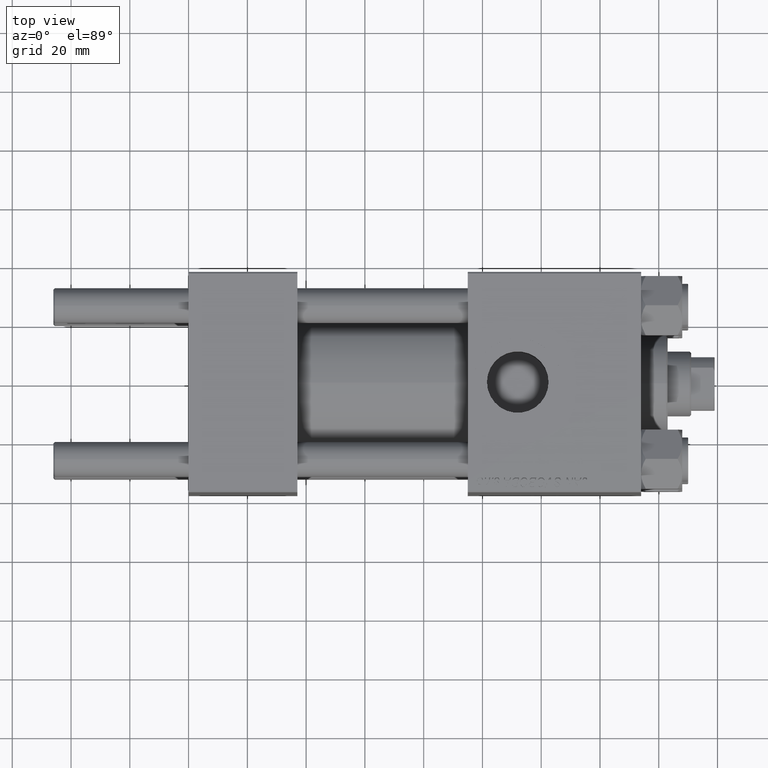
[diagram: clean part render]
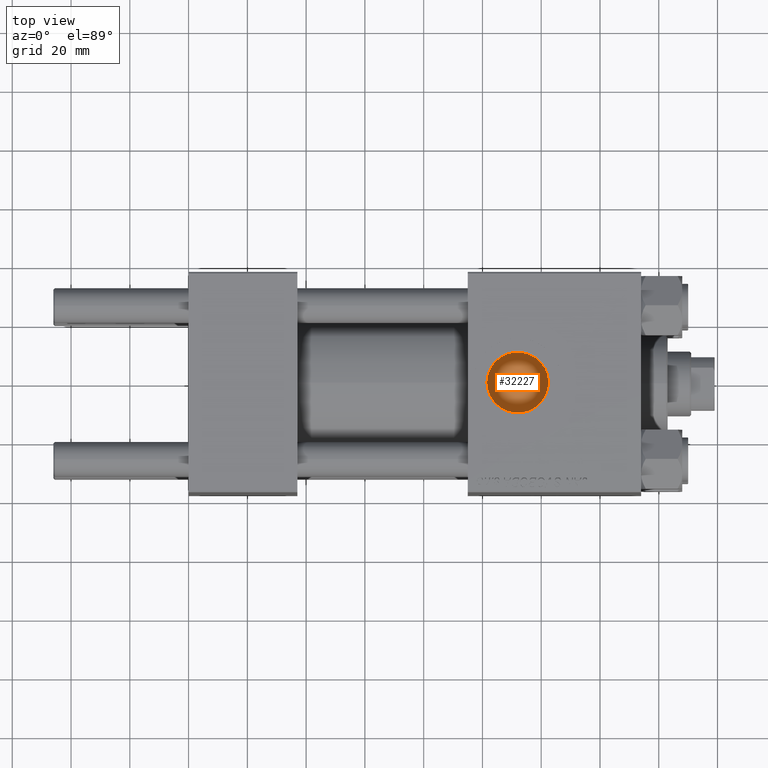
[diagram: same view with one face highlighted and labeled with its STEP entity id]
A machine part, top view. The second image highlights one B-rep face of the part: STEP entity #32227.
In plain terms, the highlighted planar face has unit normal (0, 0, 1).
Its self-contained STEP definition (entity closure, byte-faithful):
#1151 = DIRECTION ( 'NONE',  ( 1.000000000000000000, 0.000000000000000000, 0.000000000000000000 ) ) ;
#1303 = CIRCLE ( 'NONE', #39878, 10.48000000000000398 ) ;
#9064 = DIRECTION ( 'NONE',  ( 1.000000000000000000, 0.000000000000000000, -0.000000000000000000 ) ) ;
#12086 = CARTESIAN_POINT ( 'NONE',  ( 112.0000000000000000, -6.938893903907226011E-15, 21.09999999999998010 ) ) ;
#12502 = CARTESIAN_POINT ( 'NONE',  ( 112.0000000000000000, -6.938893903907226011E-15, 21.09999999999998010 ) ) ;
#14531 = ORIENTED_EDGE ( 'NONE', *, *, #41936, .T. ) ;
#16159 = DIRECTION ( 'NONE',  ( 1.000000000000000000, 0.000000000000000000, 0.000000000000000000 ) ) ;
#17888 = AXIS2_PLACEMENT_3D ( 'NONE', #12086, #42746, #9064 ) ;
#18286 = VERTEX_POINT ( 'NONE', #26664 ) ;
#19478 = ORIENTED_EDGE ( 'NONE', *, *, #40466, .T. ) ;
#19929 = CARTESIAN_POINT ( 'NONE',  ( 112.0000000000000000, -6.938893903907226011E-15, 21.09999999999998010 ) ) ;
#20292 = DIRECTION ( 'NONE',  ( 0.000000000000000000, 0.000000000000000000, 1.000000000000000000 ) ) ;
#20619 = FACE_OUTER_BOUND ( 'NONE', #44451, .T. ) ;
#21478 = AXIS2_PLACEMENT_3D ( 'NONE', #19929, #35278, #16159 ) ;
#26664 = CARTESIAN_POINT ( 'NONE',  ( 101.5199999999999960, -6.938893903907226011E-15, 21.09999999999998010 ) ) ;
#32227 = ADVANCED_FACE ( 'NONE', ( #20619 ), #46522, .T. ) ;
#32466 = VERTEX_POINT ( 'NONE', #37972 ) ;
#35278 = DIRECTION ( 'NONE',  ( 0.000000000000000000, 0.000000000000000000, 1.000000000000000000 ) ) ;
#37972 = CARTESIAN_POINT ( 'NONE',  ( 122.4800000000000040, -5.655464058400800522E-15, 21.09999999999998010 ) ) ;
#39878 = AXIS2_PLACEMENT_3D ( 'NONE', #12502, #20292, #1151 ) ;
#40466 = EDGE_CURVE ( 'NONE', #18286, #32466, #1303, .T. ) ;
#41936 = EDGE_CURVE ( 'NONE', #32466, #18286, #47969, .T. ) ;
#42746 = DIRECTION ( 'NONE',  ( 0.000000000000000000, 0.000000000000000000, 1.000000000000000000 ) ) ;
#44451 = EDGE_LOOP ( 'NONE', ( #19478, #14531 ) ) ;
#46522 = PLANE ( 'NONE',  #17888 ) ;
#47969 = CIRCLE ( 'NONE', #21478, 10.48000000000000398 ) ;